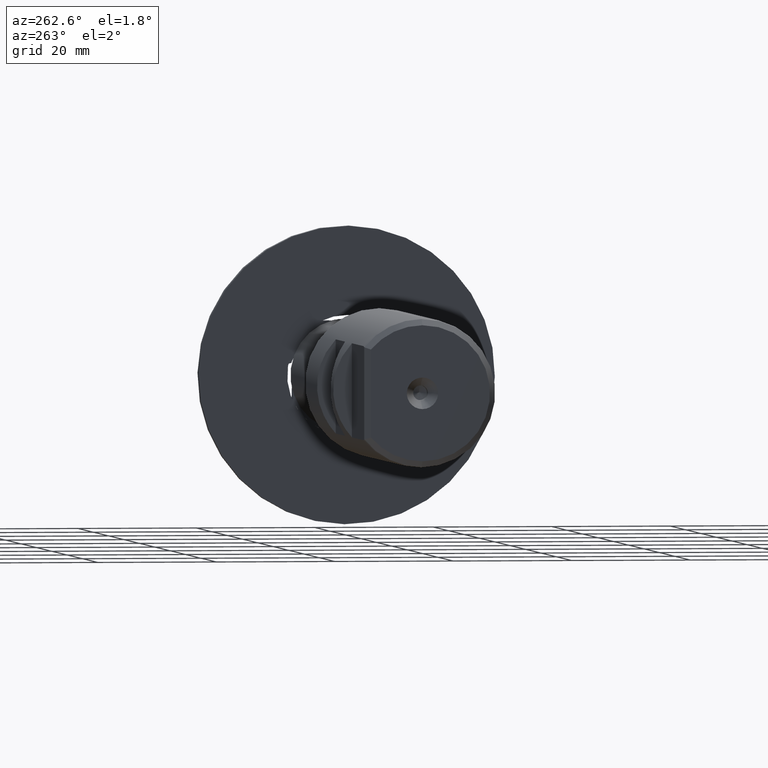
[diagram: clean part render]
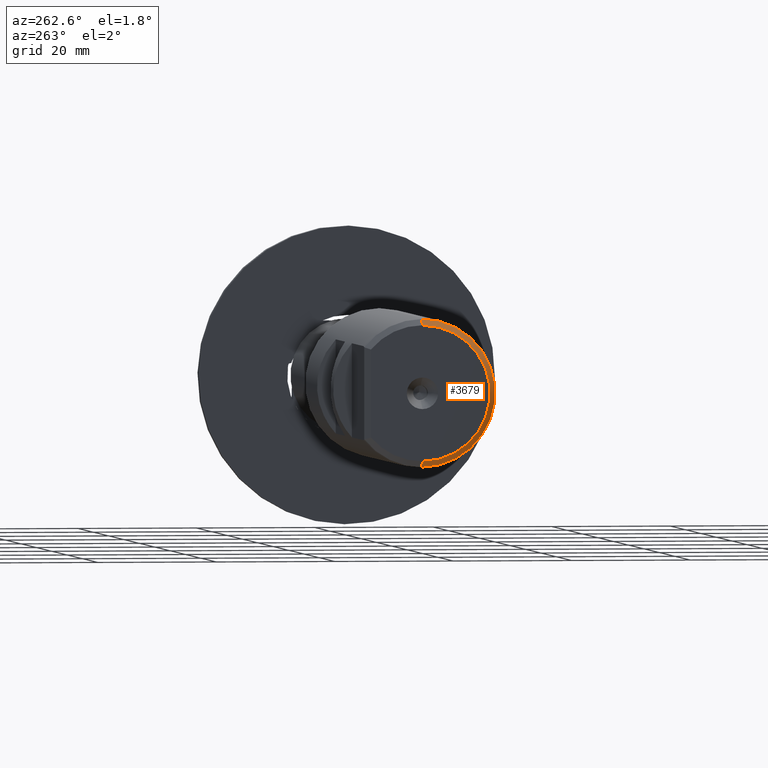
[diagram: same view with one face highlighted and labeled with its STEP entity id]
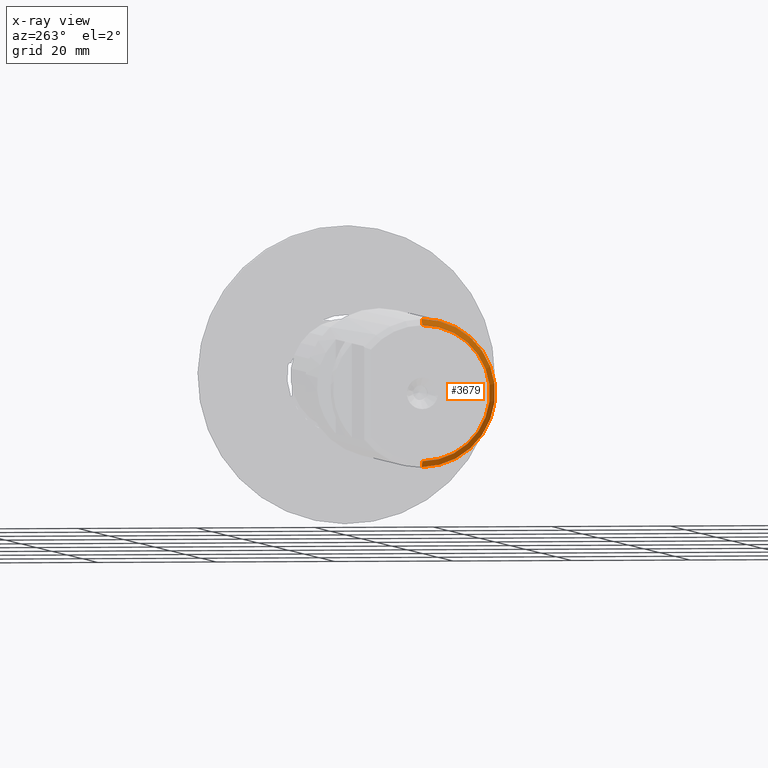
[diagram: x-ray of the same camera — body ghosted, the highlighted face saturated]
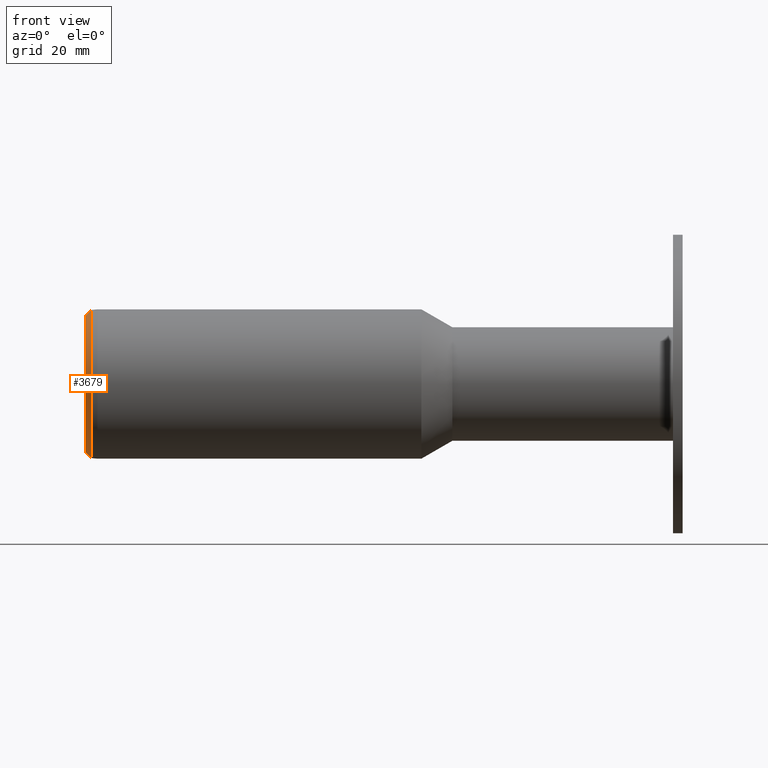
[diagram: same view with one face highlighted and labeled with its STEP entity id]
A machine part, auxiliary view. The second image highlights one B-rep face of the part: STEP entity #3679.
The next image is the same camera in x-ray: the body ghosted, the highlighted face saturated — about 0% of this face is hidden behind the body in this view.
A second angle (front view) of the same face is appended — the face is thin or edge-on in the first view.
In plain terms, the highlighted conical surface has half-angle 45 deg.
Its self-contained STEP definition (entity closure, byte-faithful):
#11 = DIRECTION ( 'NONE',  ( 0.0000000000000000000, 0.0000000000000000000, -1.000000000000000000 ) ) ;
#17 = AXIS2_PLACEMENT_3D ( 'NONE', #3606, #2946, #11 ) ;
#31 = EDGE_LOOP ( 'NONE', ( #3548, #337, #2171, #1608 ) ) ;
#230 = CARTESIAN_POINT ( 'NONE',  ( -99.79994865999999831, 1.457329690985348026E-15, 11.39999999999998792 ) ) ;
#232 = CARTESIAN_POINT ( 'NONE',  ( -99.79994865999999831, 0.0000000000000000000, -11.39999999999998792 ) ) ;
#337 = ORIENTED_EDGE ( 'NONE', *, *, #2098, .T. ) ;
#609 = VECTOR ( 'NONE', #1673, 1000.000000000000000 ) ;
#762 = CARTESIAN_POINT ( 'NONE',  ( -98.79994865999999831, 0.0000000000000000000, -12.39999999999997726 ) ) ;
#940 = AXIS2_PLACEMENT_3D ( 'NONE', #2117, #1150, #3421 ) ;
#999 = CIRCLE ( 'NONE', #3037, 12.39999999999997726 ) ;
#1057 = VERTEX_POINT ( 'NONE', #230 ) ;
#1084 = EDGE_CURVE ( 'NONE', #3763, #1851, #999, .T. ) ;
#1086 = CONICAL_SURFACE ( 'NONE', #17, 12.39999999999997726, 0.7853981633974422838 ) ;
#1150 = DIRECTION ( 'NONE',  ( 1.000000000000000000, -0.0000000000000000000, -0.0000000000000000000 ) ) ;
#1608 = ORIENTED_EDGE ( 'NONE', *, *, #1084, .F. ) ;
#1673 = DIRECTION ( 'NONE',  ( 0.7071067811865517916, 8.659560562354881089E-17, 0.7071067811865432429 ) ) ;
#1851 = VERTEX_POINT ( 'NONE', #3953 ) ;
#2002 = EDGE_CURVE ( 'NONE', #3223, #1851, #2061, .T. ) ;
#2061 = LINE ( 'NONE', #762, #3018 ) ;
#2098 = EDGE_CURVE ( 'NONE', #1057, #3223, #3784, .T. ) ;
#2117 = CARTESIAN_POINT ( 'NONE',  ( -99.79994865999999831, 0.0000000000000000000, 0.0000000000000000000 ) ) ;
#2145 = LINE ( 'NONE', #2642, #609 ) ;
#2171 = ORIENTED_EDGE ( 'NONE', *, *, #2002, .T. ) ;
#2327 = DIRECTION ( 'NONE',  ( 0.7071067811865517916, 0.0000000000000000000, -0.7071067811865432429 ) ) ;
#2642 = CARTESIAN_POINT ( 'NONE',  ( -98.79994865999999831, 1.518562030942715206E-15, 12.39999999999997726 ) ) ;
#2946 = DIRECTION ( 'NONE',  ( 1.000000000000000000, -0.0000000000000000000, -0.0000000000000000000 ) ) ;
#3018 = VECTOR ( 'NONE', #2327, 1000.000000000000000 ) ;
#3037 = AXIS2_PLACEMENT_3D ( 'NONE', #3490, #3829, #4149 ) ;
#3223 = VERTEX_POINT ( 'NONE', #232 ) ;
#3320 = FACE_OUTER_BOUND ( 'NONE', #31, .T. ) ;
#3342 = CARTESIAN_POINT ( 'NONE',  ( -98.79994865999999831, 1.518562030942715206E-15, 12.39999999999997726 ) ) ;
#3421 = DIRECTION ( 'NONE',  ( 0.0000000000000000000, 0.0000000000000000000, -1.000000000000000000 ) ) ;
#3446 = EDGE_CURVE ( 'NONE', #1057, #3763, #2145, .T. ) ;
#3490 = CARTESIAN_POINT ( 'NONE',  ( -98.79994865999999831, 0.0000000000000000000, 0.0000000000000000000 ) ) ;
#3548 = ORIENTED_EDGE ( 'NONE', *, *, #3446, .F. ) ;
#3606 = CARTESIAN_POINT ( 'NONE',  ( -98.79994865999999831, 0.0000000000000000000, 0.0000000000000000000 ) ) ;
#3679 = ADVANCED_FACE ( 'NONE', ( #3320 ), #1086, .T. ) ;
#3763 = VERTEX_POINT ( 'NONE', #3342 ) ;
#3784 = CIRCLE ( 'NONE', #940, 11.39999999999998792 ) ;
#3829 = DIRECTION ( 'NONE',  ( 1.000000000000000000, -0.0000000000000000000, -0.0000000000000000000 ) ) ;
#3953 = CARTESIAN_POINT ( 'NONE',  ( -98.79994865999999831, 0.0000000000000000000, -12.39999999999997726 ) ) ;
#4149 = DIRECTION ( 'NONE',  ( 0.0000000000000000000, 0.0000000000000000000, -1.000000000000000000 ) ) ;